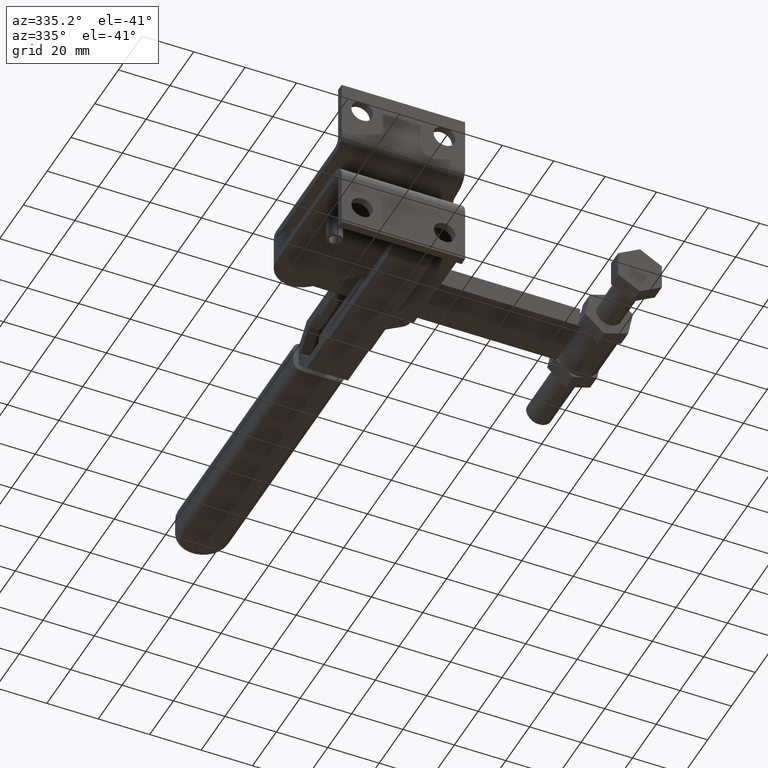
[diagram: clean part render]
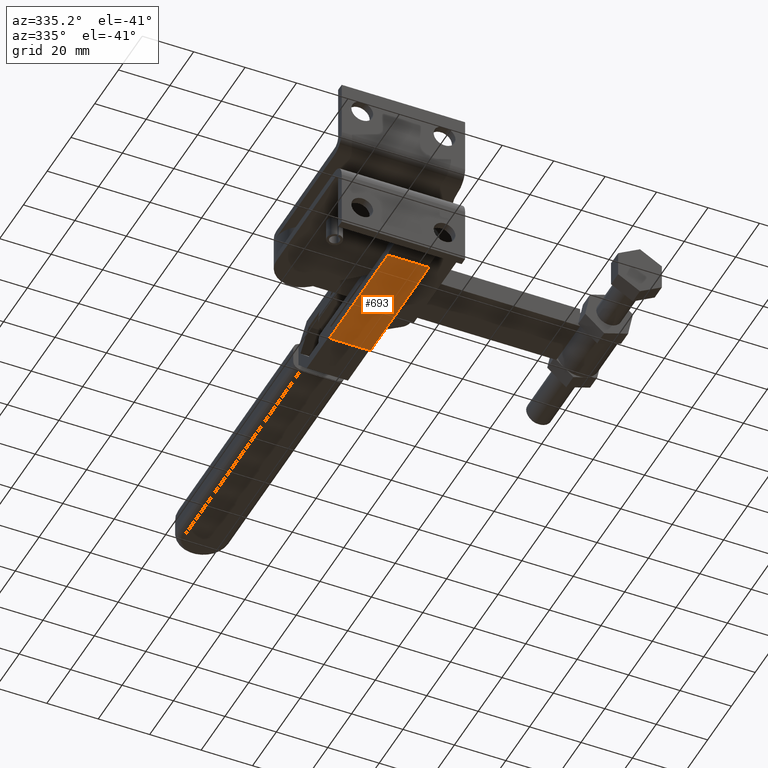
[diagram: same view with one face highlighted and labeled with its STEP entity id]
A machine part, auxiliary view. The second image highlights one B-rep face of the part: STEP entity #693.
In plain terms, the highlighted planar face has unit normal (0, 0, -1).
Its self-contained STEP definition (entity closure, byte-faithful):
#630=CARTESIAN_POINT('',(-980.357969660989510,95.435395336134988,-12.000000000000437));
#631=VERTEX_POINT('',#630);
#638=CARTESIAN_POINT('',(-964.357969660989620,95.435395336135173,-12.000000000000428));
#639=VERTEX_POINT('',#638);
#640=CARTESIAN_POINT('',(-964.357969660989620,95.435395336135173,-12.000000000000428));
#641=DIRECTION('',(-1.0,0.0,0.0));
#642=VECTOR('',#641,15.999999999999886);
#643=LINE('',#640,#642);
#644=EDGE_CURVE('',#639,#631,#643,.T.);
#663=CARTESIAN_POINT('',(-964.357969660989620,95.435395336135173,-12.000000000000428));
#664=DIRECTION('',(0.0,0.0,-1.0));
#665=DIRECTION('',(-1.0,0.0,0.0));
#666=AXIS2_PLACEMENT_3D('',#663,#664,#665);
#667=PLANE('',#666);
#668=CARTESIAN_POINT('',(-980.357969660990310,144.749103835119630,-12.000000000000437));
#669=VERTEX_POINT('',#668);
#670=CARTESIAN_POINT('',(-980.357969660989510,95.435395336134988,-12.000000000000437));
#671=DIRECTION('',(0.0,1.0,0.0));
#672=VECTOR('',#671,49.313708498984639);
#673=LINE('',#670,#672);
#674=EDGE_CURVE('',#631,#669,#673,.T.);
#675=ORIENTED_EDGE('',*,*,#674,.T.);
#676=CARTESIAN_POINT('',(-964.357969660990190,144.749103835119800,-12.000000000000428));
#677=VERTEX_POINT('',#676);
#678=CARTESIAN_POINT('',(-964.357969660990190,144.749103835119800,-12.000000000000428));
#679=DIRECTION('',(-1.0,0.0,0.0));
#680=VECTOR('',#679,16.000000000000114);
#681=LINE('',#678,#680);
#682=EDGE_CURVE('',#677,#669,#681,.T.);
#683=ORIENTED_EDGE('',*,*,#682,.F.);
#684=CARTESIAN_POINT('',(-964.357969660990190,144.749103835119800,-12.000000000000428));
#685=DIRECTION('',(0.0,-1.0,0.0));
#686=VECTOR('',#685,49.313708498984624);
#687=LINE('',#684,#686);
#688=EDGE_CURVE('',#677,#639,#687,.T.);
#689=ORIENTED_EDGE('',*,*,#688,.T.);
#690=ORIENTED_EDGE('',*,*,#644,.T.);
#691=EDGE_LOOP('',(#675,#683,#689,#690));
#692=FACE_OUTER_BOUND('',#691,.T.);
#693=ADVANCED_FACE('',(#692),#667,.T.);